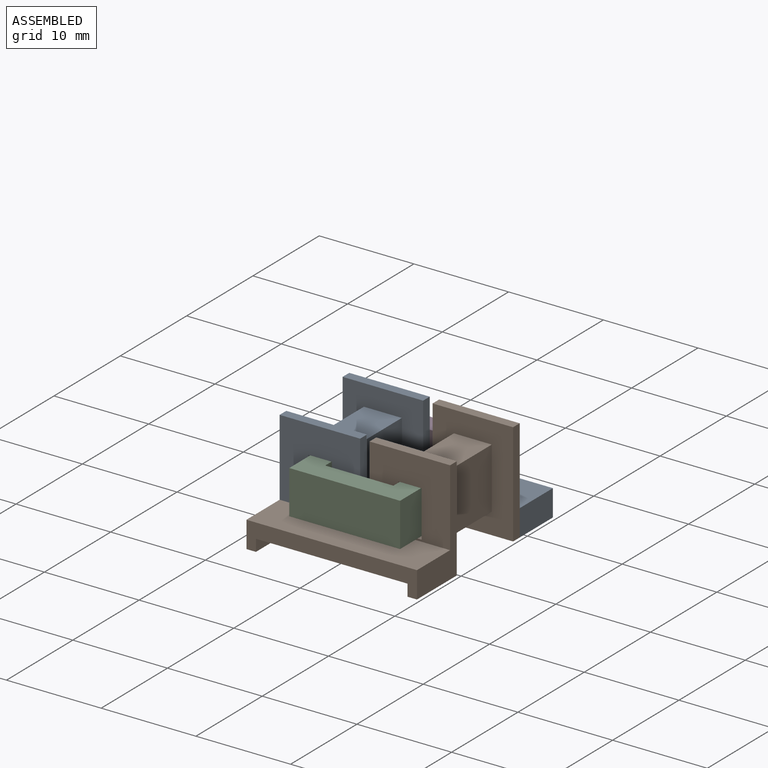
[diagram: assembled view]
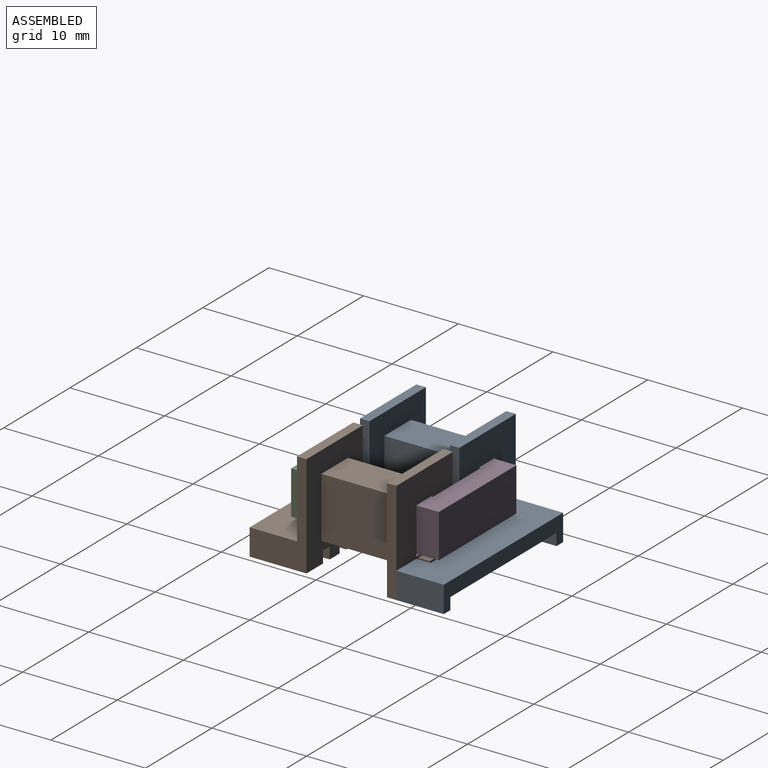
[diagram: assembled view, second angle]
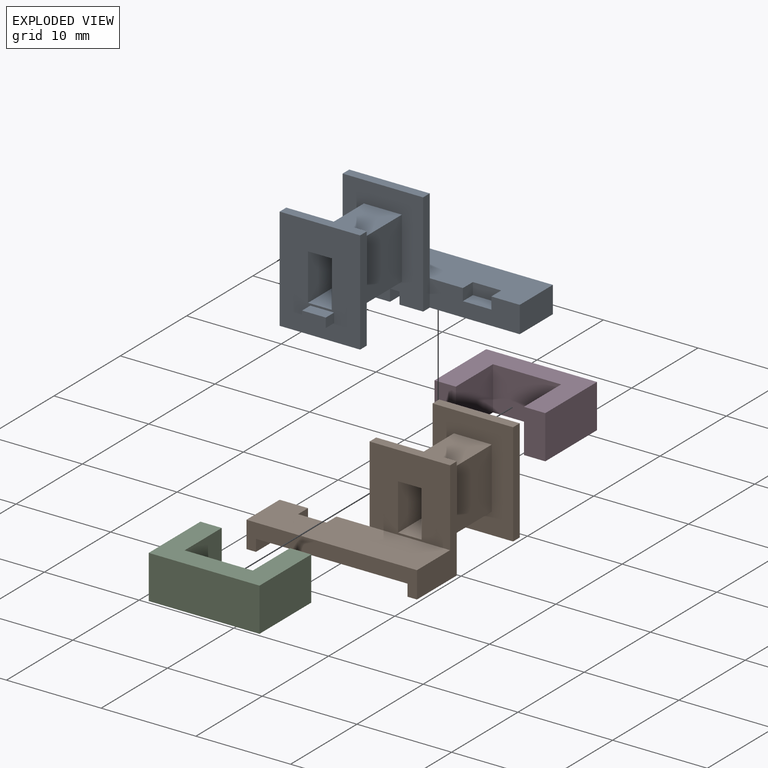
[diagram: exploded view]
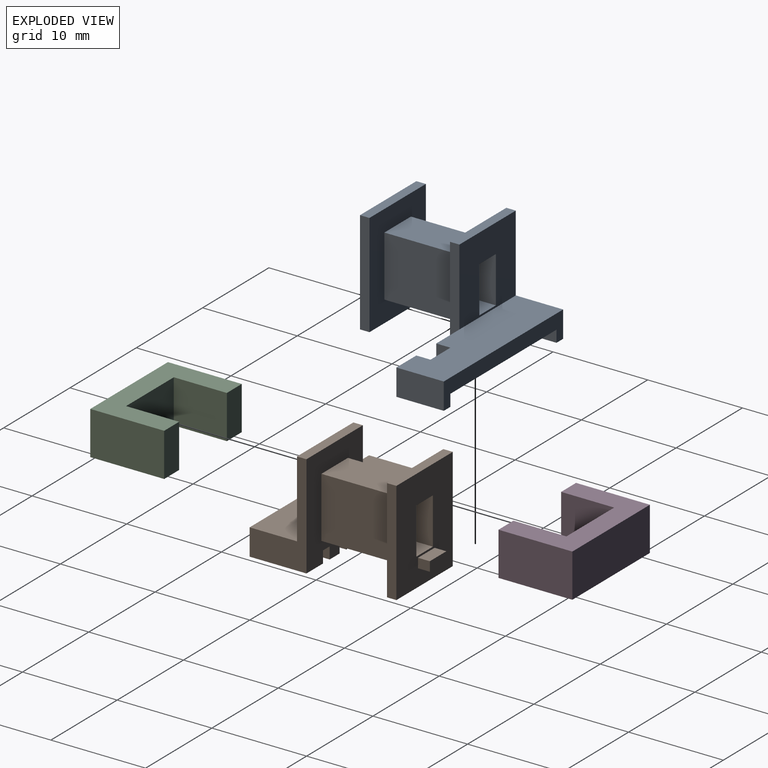
[diagram: exploded view, second angle]
ASSEMBLY  parts=4 mates=3
PART A: 53 faces, bbox 18x16.8x10.9 mm
  f0: plane 6x2.5mm, normal (0,0,-1), area 9mm2, adj f20,f21,f24,f38,f39,f40
  f1: plane 2x1.5mm, normal (0,0,-1), area 3mm2, adj f21,f35,f36,f37
  f2: plane 10.9x8.5mm, normal (0,-1,0), area 77.9mm2, adj f7,f8,f9,f10,f13,f14,f15,f16
  f3: plane 8.5x6.4mm, normal (-1,0,0), area 54.4mm2, adj f4,f6,f12,f21
  f4: plane 8.5x4mm, normal (0,0,-1), area 34mm2, adj f3,f5,f12,f21
  f5: plane 8.5x6.4mm, normal (1,0,0), area 54.4mm2, adj f4,f6,f12,f21
  f6: plane 8.5x4mm, normal (0,0,1), area 34mm2, adj f3,f5,f12,f21
  f7: plane 10.5x4.9mm, normal (1,0,0), area 51.5mm2, adj f2,f8,f10,f11
  f8: plane 10.5x2.5mm, normal (0,0,-1), area 26.2mm2, adj f2,f7,f9,f11
  f9: plane 10.5x4.9mm, normal (-1,0,0), area 51.5mm2, adj f2,f8,f10,f11
  f10: plane 10.5x2.5mm, normal (0,0,1), area 26.2mm2, adj f2,f7,f9,f11
  f11: plane 8.5x8.1mm, normal (0,1,0), area 56.6mm2, adj f7,f8,f9,f10,f17,f18,f20,f23
  f12: plane 10.9x8.5mm, normal (0,1,0), area 67mm2, adj f3,f4,f5,f6,f13,f14,f15,f16
  f13: plane 8.5x1mm, normal (0,0,1), area 8.5mm2, adj f2,f12,f14,f16
  f14: plane 10.9x1mm, normal (-1,0,0), area 10.9mm2, adj f2,f12,f13,f15
  f15: plane 8.5x1mm, normal (0,0,-1), area 8.5mm2, adj f2,f12,f14,f16
  f16: plane 10.9x1mm, normal (1,0,0), area 10.9mm2, adj f2,f12,f13,f15
  f17: plane 8.5x1mm, normal (0,0,1), area 8.5mm2, adj f11,f18,f20,f21
  f18: plane 10.9x1mm, normal (1,0,0), area 10.9mm2, adj f11,f17,f19,f21,f22
  f19: plane 12x6mm, normal (0,0,-1), area 18.5mm2, adj f18,f21,f22,f24,f25,f41,f42,f43
  f20: plane 10.9x6mm, normal (-1,0,0), area 24.9mm2, adj f0,f11,f17,f21,f23,f24
  f21: plane 10.9x8.5mm, normal (0,-1,0), area 64.5mm2, adj f0,f1,f3,f4,f5,f6,f17,f18
  f22: plane 9.5x2.8mm, normal (0,-1,0), area 22.8mm2, adj f18,f19,f23,f25,f26,f28,f29
  f23: plane 18x5mm, normal (0,0,1), area 85.5mm2, adj f11,f20,f22,f24,f25,f26,f27,f28
  f24: plane 18x2.8mm, normal (0,1,0), area 30.4mm2, adj f0,f19,f20,f23,f25,f40,f41,f44
  f25: plane 5x2.8mm, normal (1,0,0), area 14mm2, adj f19,f22,f23,f24
  f26: plane 1.5x1.25mm, normal (-1,0,0), area 1.9mm2, adj f22,f23,f27,f29
  f27: plane 3x1.25mm, normal (0,-1,0), area 3.7mm2, adj f23,f26,f28,f29
  f28: plane 1.5x1.25mm, normal (1,0,0), area 1.9mm2, adj f22,f23,f27,f29
  f29: plane 3x1.5mm, normal (0,0,1), area 4.5mm2, adj f22,f26,f27,f28
  f30: plane 2.5x1.25mm, normal (0,0,1), area 3.1mm2, adj f2,f31,f33,f34
  f31: plane 1.25x1mm, normal (-1,0,0), area 1.2mm2, adj f2,f30,f32,f34
  f32: plane 2.5x1.25mm, normal (0,0,-1), area 3.1mm2, adj f2,f31,f33,f34
  f33: plane 1.25x1mm, normal (1,0,0), area 1.2mm2, adj f2,f30,f32,f34
  f34: plane 2.5x1mm, normal (0,-1,0), area 2.5mm2, adj f30,f31,f32,f33
  f35: plane 2x1.25mm, normal (1,0,0), area 2.5mm2, adj f1,f21,f36,f44
  f36: plane 1.5x1.25mm, normal (0,1,0), area 1.9mm2, adj f1,f35,f37,f44
  f37: plane 2x1.25mm, normal (-1,0,0), area 2.5mm2, adj f1,f21,f36,f44
  f38: plane 2x1.25mm, normal (1,0,0), area 2.5mm2, adj f0,f21,f39,f44
  f39: plane 1.5x1.25mm, normal (0,1,0), area 1.9mm2, adj f0,f38,f40,f44
  f40: plane 4x1.25mm, normal (1,0,0), area 5mm2, adj f0,f24,f39,f44
  f41: plane 4x1.25mm, normal (-1,0,0), area 5mm2, adj f19,f24,f42,f44
  f42: plane 11x1.25mm, normal (0,1,0), area 13.7mm2, adj f19,f41,f43,f44
  f43: plane 2x1.25mm, normal (-1,0,0), area 2.5mm2, adj f19,f21,f42,f44
  f44: plane 16x6mm, normal (0,0,-1), area 65.5mm2, adj f21,f24,f35,f36,f37,f38,f39,f40
  f45: cylinder r=0.45mm len=1mm, axis (0,0,-1), area 2.8mm2, adj f44,f46
  f46: plane 0.9x0.9mm, normal (0,0,-1), area 0.6mm2, adj f45
  f47: cylinder r=0.45mm len=1mm, axis (0,0,-1), area 2.8mm2, adj f44,f48
  f48: plane 0.9x0.9mm, normal (0,0,-1), area 0.6mm2, adj f47
  f49: cylinder r=0.45mm len=1mm, axis (0,0,-1), area 2.8mm2, adj f44,f50
  f50: plane 0.9x0.9mm, normal (0,0,-1), area 0.6mm2, adj f49
  f51: cylinder r=0.45mm len=1mm, axis (0,0,-1), area 2.8mm2, adj f44,f52
  f52: plane 0.9x0.9mm, normal (0,0,-1), area 0.6mm2, adj f51
PART B: same geometry as A
PART C: 10 faces, bbox 11.7x7.8x4.6 mm
  f0: plane 7.8x4.6mm, normal (-1,0,0), area 35.9mm2, adj f1,f7,f8,f9
  f1: plane 4.6x2.25mm, normal (0,-1,0), area 10.3mm2, adj f0,f2,f8,f9
  f2: plane 5.6x4.6mm, normal (1,0,0), area 25.8mm2, adj f1,f3,f8,f9
  f3: plane 7.2x4.6mm, normal (0,-1,0), area 33.1mm2, adj f2,f4,f8,f9
  f4: plane 5.6x4.6mm, normal (-1,0,0), area 25.8mm2, adj f3,f5,f8,f9
  f5: plane 4.6x2.25mm, normal (0,-1,0), area 10.4mm2, adj f4,f6,f8,f9
  f6: plane 7.8x4.6mm, normal (1,0,0), area 35.9mm2, adj f5,f7,f8,f9
  f7: plane 11.7x4.6mm, normal (0,1,0), area 53.8mm2, adj f0,f6,f8,f9
  f8: plane 11.7x7.8mm, normal (0,0,1), area 50.9mm2, adj f0,f1,f2,f3,f4,f5,f6,f7
  f9: plane 11.7x7.8mm, normal (0,0,-1), area 50.9mm2, adj f0,f1,f2,f3,f4,f5,f6,f7
PART D: same geometry as C
PLACE A t=(-5.58,-1.9,3.25)mm fixed
PLACE B rot(axis=(0,0,-1),180deg) t=(7.92,8.6,3.25)mm
PLACE C rot(axis=(0,0,-1),180deg) t=(6.92,3,4.15)mm
PLACE D t=(-4.78,3,4.15)mm
MATE fastened D.f5 <-> C.f1  axis (0,-1,0) through (5.79,3,6.45)mm
MATE fastened A.f15 <-> B.f19  axis (0,0,-1) through (-7.83,-1.9,1)mm
MATE fastened D.f3 <-> B.f2  axis (0,-1,0) through (4.67,8.6,6.45)mm
